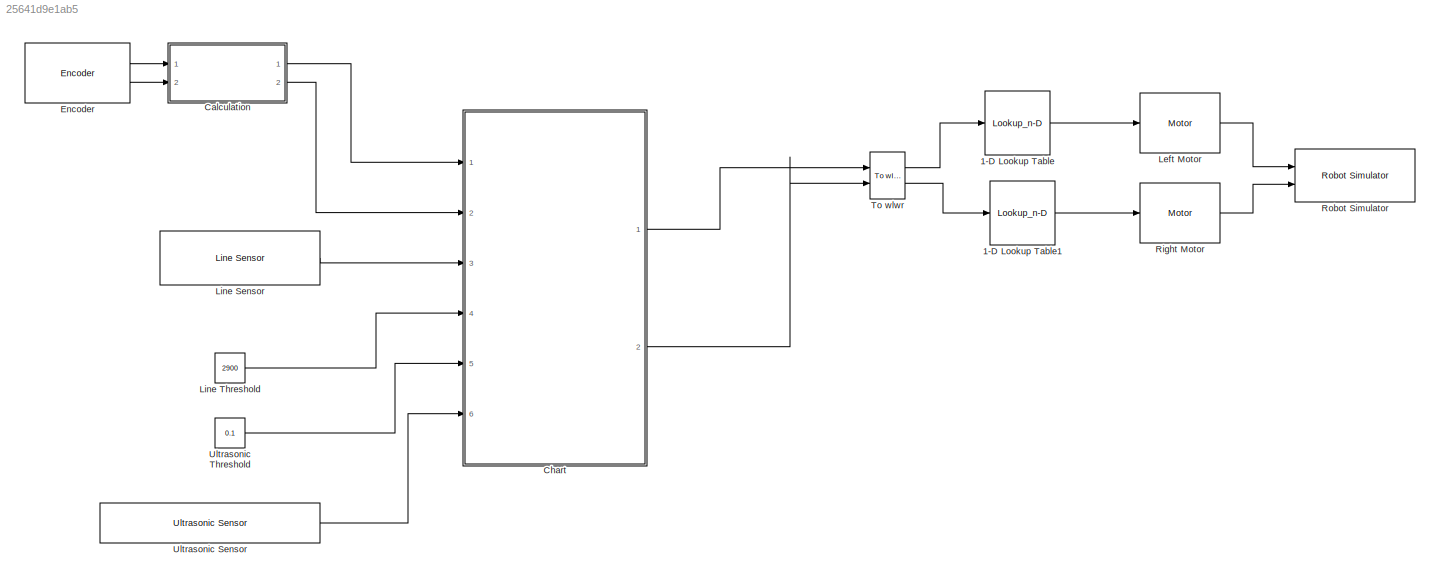
MODEL slx_25641d9e1ab5
KIND model
CONFIG AbsTol = auto
CONFIG EnableMultiTasking = off
CONFIG FixedStep = 0.01
CONFIG MaxStep = auto
CONFIG MinStep = auto
CONFIG RelTol = 1e-3
CONFIG SampleTimeConstraint = Unconstrained
CONFIG Solver = FixedStepDiscrete
CONFIG SolverName = FixedStepDiscrete
CONFIG StartTime = 0.0
CONFIG StopTime = 50.0
BLOCK [Lookup_n-D] 1-D Lookup Table
  BreakpointsForDimension1 = motorSp
  InternalRulePriority = Speed
  NumberOfTableDimensions = 1
  Ports = [1, 1]
  RndMeth = Simplest
  Table = motorIp
BLOCK [Lookup_n-D] 1-D Lookup Table1
  BreakpointsForDimension1 = motorSp
  InternalRulePriority = Speed
  NumberOfTableDimensions = 1
  Ports = [1, 1]
  RndMeth = Simplest
  Table = motorIp
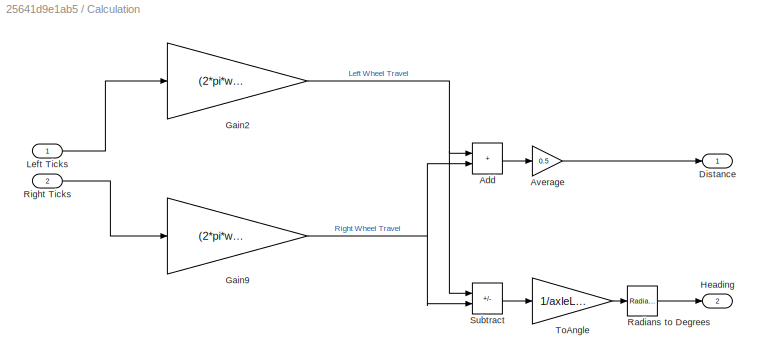
BLOCK [SubSystem] Calculation
  Ports = [2, 2]
  RequestExecContextInheritance = off
BLOCK [Sum] Calculation/Add
  IconShape = rectangular
  Ports = [2, 1]
BLOCK [Gain] Calculation/Average
  Gain = 0.5
BLOCK [Outport] Calculation/Distance
BLOCK [Gain] Calculation/Gain2
  Gain = (2*pi*wheelR)/ticksPerRot
  NameLocation = top
BLOCK [Gain] Calculation/Gain9
  Gain = (2*pi*wheelR)/ticksPerRot
  NameLocation = top
BLOCK [Outport] Calculation/Heading
  Port = 2
BLOCK [Inport] Calculation/Left Ticks
BLOCK [Reference] Calculation/Radians to Degrees  REF=simulink_extras/Transformations/Radians
to Degrees
  Ports = [1, 1]
  SourceBlock = simulink_extras/Transformations/Radians\nto Degrees
  SourceProductBaseCode = SL
  SourceType = RadiansToDegrees
BLOCK [Inport] Calculation/Right Ticks
  Port = 2
BLOCK [Sum] Calculation/Subtract
  IconShape = rectangular
  Inputs = -+
  Ports = [2, 1]
BLOCK [Gain] Calculation/ToAngle
  Gain = 1/axleLength
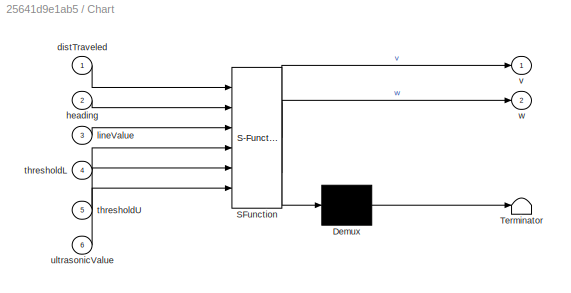
BLOCK [SubSystem] Chart
  ErrorFcn = Stateflow.Translate.translate
  PermitHierarchicalResolution = ExplicitOnly
  Ports = [6, 2]
  RequestExecContextInheritance = off
  SFBlockType = Chart
  TreatAsAtomicUnit = on
BLOCK [Demux] Chart/ Demux 
  Outputs = 1
  Ports = [1, 1]
BLOCK [S-Function] Chart/ SFunction 
  EnableBusSupport = on
  FunctionName = sf_sfun
  PortCounts = [6 3]
  Ports = [6, 3]
  SFcnIsStateOwnerBlock = off
  SFunctionDeploymentMode = off
  Tag = Stateflow S-Function 3
BLOCK [Terminator] Chart/ Terminator 
BLOCK [Inport] Chart/distTraveled
BLOCK [Inport] Chart/heading
  Port = 2
BLOCK [Inport] Chart/lineValue
  Port = 3
BLOCK [Inport] Chart/thresholdL
  Port = 4
BLOCK [Inport] Chart/thresholdU
  Port = 5
BLOCK [Inport] Chart/ultrasonicValue
  Port = 6
BLOCK [Outport] Chart/v
BLOCK [Outport] Chart/w
  Port = 2
BLOCK [Reference] Encoder  REF=mobileRoboticsTrainingLib/Encoder
  Ports = [0, 2]
  SourceBlock = mobileRoboticsTrainingLib/Encoder
  SourceProductName = Mobile Robotics Training Library
  SourceType = Encoder Simulation
BLOCK [Reference] Left Motor  REF=mobileRoboticsTrainingLib/Motor
  Ports = [1, 1]
  SourceBlock = mobileRoboticsTrainingLib/Motor
  SourceProductName = Mobile Robotics Training Library
  SourceType = Motor Model
BLOCK [Reference] Line Sensor  REF=mobileRoboticsTrainingLib/Line Sensor
  Ports = [0, 1]
  SourceBlock = mobileRoboticsTrainingLib/Line Sensor
  SourceProductName = Mobile Robotics Training Library
  SourceType = Line Sensor Simulation
BLOCK [Constant] Line Threshold
  Value = 2900
BLOCK [Reference] Right Motor  REF=mobileRoboticsTrainingLib/Motor
  Ports = [1, 1]
  SourceBlock = mobileRoboticsTrainingLib/Motor
  SourceProductName = Mobile Robotics Training Library
  SourceType = Motor Model
BLOCK [Reference] Robot Simulator  REF=mobileRoboticsTrainingLib/Robot Simulator
  Ports = [2]
  Priority = 99
  SourceBlock = mobileRoboticsTrainingLib/Robot Simulator
  SourceProductName = Mobile Robotics Training Library
  SourceType = Robot Simulator
BLOCK [Reference] To wlwr  REF=mobileRoboticsTrainingLib/To wlwr
  Ports = [2, 2]
  SourceBlock = mobileRoboticsTrainingLib/To wlwr
  SourceProductName = Mobile Robotics Training Library
  SourceType = To wlwr
BLOCK [Reference] Ultrasonic Sensor  REF=mobileRoboticsTrainingLib/Ultrasonic Sensor
  Ports = [0, 1]
  SourceBlock = mobileRoboticsTrainingLib/Ultrasonic Sensor
  SourceProductName = Mobile Robotics Training Library
  SourceType = Ultrasonic Sensor Simulation
BLOCK [Constant] Ultrasonic Threshold
  Value = 0.1
LINE 1-D Lookup Table1:1 -> Right Motor:1
LINE 1-D Lookup Table:1 -> Left Motor:1
LINE Calculation/Add:1 -> Calculation/Average:1
LINE Calculation/Average:1 -> Calculation/Distance:1
NET Calculation/Gain2:1 -> Calculation/Add:1, Calculation/Subtract:1
NET Calculation/Gain9:1 -> Calculation/Add:2, Calculation/Subtract:2
LINE Calculation/Left Ticks:1 -> Calculation/Gain2:1
LINE Calculation/Radians to Degrees:1 -> Calculation/Heading:1
LINE Calculation/Right Ticks:1 -> Calculation/Gain9:1
LINE Calculation/Subtract:1 -> Calculation/ToAngle:1
LINE Calculation/ToAngle:1 -> Calculation/Radians to Degrees:1
LINE Calculation:1 -> Chart:1
LINE Calculation:2 -> Chart:2
LINE Chart:1 -> To wlwr:1
LINE Chart:2 -> To wlwr:2
LINE Encoder:1 -> Calculation:1
LINE Encoder:2 -> Calculation:2
LINE Left Motor:1 -> Robot Simulator:1
LINE Line Sensor:1 -> Chart:3
LINE Line Threshold:1 -> Chart:4
LINE Right Motor:1 -> Robot Simulator:2
LINE To wlwr:1 -> 1-D Lookup Table:1
LINE To wlwr:2 -> 1-D Lookup Table1:1
LINE Ultrasonic Sensor:1 -> Chart:6
LINE Ultrasonic Threshold:1 -> Chart:5
note: NET lines group one-source signal fan-out (src -> all destinations, sorted); 1:1 wires keep LINE
CHART Chart states=18 transitions=21
  STATE_LABEL 'SegmentA\n'
  STATE_LABEL 'MoveForward\nentry:\nv = 0.5;'
  STATE_LABEL 'Stop\nentry:\nv = 0;'
  STATE_LABEL 'Rotate\nentry:\nw = -1;'
  STATE_LABEL 'Stop1\nentry:\nw = 0;'
  STATE_LABEL '%Start Dead Reckoning'
  STATE_LABEL '[distTraveled >= 1]'
  STATE_LABEL '[heading <= -92]'
  STATE_LABEL 'MoveForward\nentry:\nv = 0.5;'
  STATE_LABEL 'Stop\nentry:\nv = 0;'
  STATE_LABEL 'Rotate\nentry:\nw = -1;'
  STATE_LABEL 'Stop1\nentry:\nw = 0;'
  STATE_LABEL 'SegmentB'
  STATE_LABEL 'FindLine\nentry:\nv = 0.05;'
  STATE_LABEL 'GoLeft\nentry:\nv = 0.1;\nw = 1;'
  STATE_LABEL 'GoRight\nentry:\nv = 0.1;\nw = -1;'
  STATE_LABEL 'Stop\nentry:\nv = 0;\nw = 0;'
  STATE_LABEL '[lineValue(2) > thresholdL]'
  STATE_LABEL '[lineValue(2) < thresholdL]'
  STATE_LABEL '[lineValue(2) >= thresholdL]'
  STATE_LABEL '[all(lineValue > thresholdL)]'
  STATE_LABEL '[all(lineValue > thresholdL)]'
  STATE_LABEL 'FindLine\nentry:\nv = 0.05;'
  STATE_LABEL 'GoLeft\nentry:\nv = 0.1;\nw = 1;'
  STATE_LABEL 'GoRight\nentry:\nv = 0.1;\nw = -1;'
  STATE_LABEL 'Stop\nentry:\nv = 0;\nw = 0;'
  STATE_LABEL 'SegmentC'
  STATE_LABEL 'MoveForward\nentry:\nv = 0.5;\ncurrDist = distTraveled;\n'
  STATE_LABEL 'Stop\nentry:\nv = 0;'
  STATE_LABEL 'Rotate\nentry:\nw = 1;\ncurrHead = heading;'
  STATE_LABEL 'Stop1\nentry:\nw = 0;'
  STATE_LABEL '%Start Dead Reckoning'
  STATE_LABEL '[distTraveled - currDist >= 0.2]'
  STATE_LABEL '[heading - currHead >= 45]'
  STATE_LABEL 'MoveForward\nentry:\nv = 0.5;\ncurrDist = distTraveled;\n'
  STATE_LABEL 'Stop\nentry:\nv = 0;'
  STATE_LABEL 'Rotate\nentry:\nw = 1;\ncurrHead = heading;'
  STATE_LABEL 'Stop1\nentry:\nw = 0;'
  STATE_LABEL 'SegmentD'
  STATE_LABEL 'Go\nentry: v = 0.2;'
CHART  states=0 transitions=0
